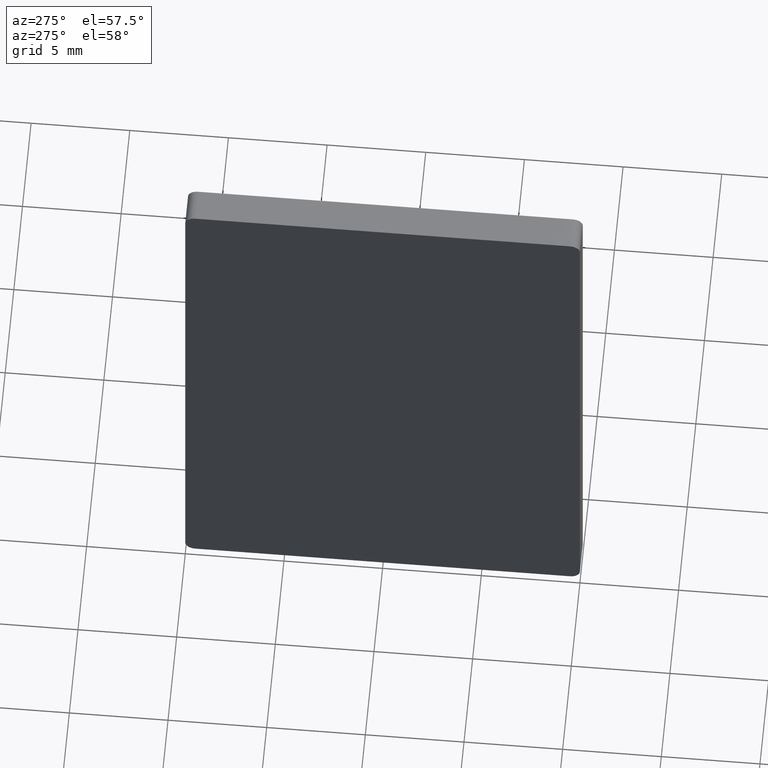
[diagram: clean part render]
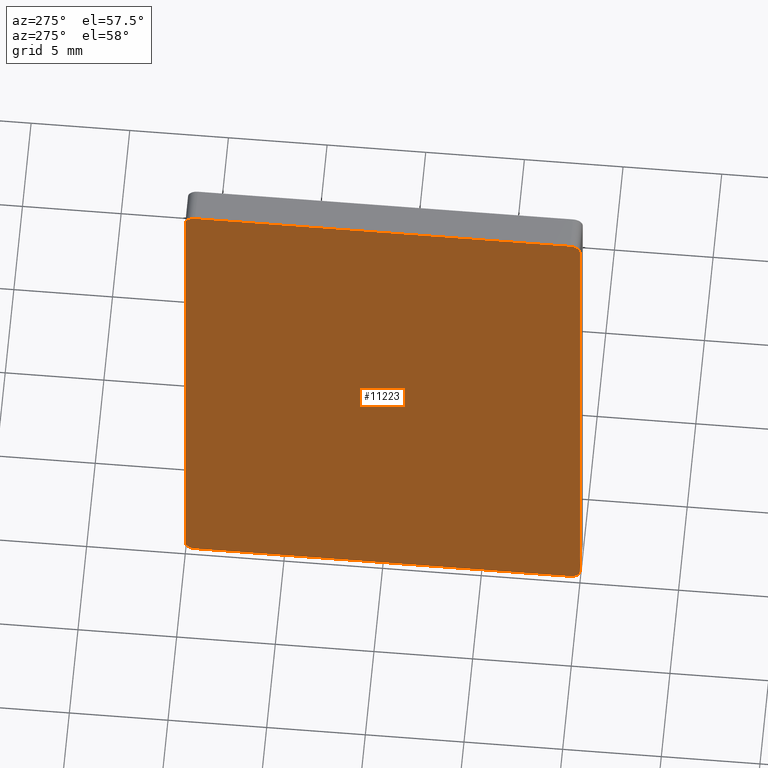
[diagram: same view with one face highlighted and labeled with its STEP entity id]
A machine part, auxiliary view. The second image highlights one B-rep face of the part: STEP entity #11223.
In plain terms, the highlighted planar face has unit normal (-1, -0, 0).
Its self-contained STEP definition (entity closure, byte-faithful):
#891 = PLANE ( 'NONE',  #8982 ) ;
#1602 = VERTEX_POINT ( 'NONE', #5547 ) ;
#1721 = EDGE_CURVE ( 'NONE', #11496, #2223, #14246, .T. ) ;
#1748 = VECTOR ( 'NONE', #4667, 1000.000000000000000 ) ;
#1776 = AXIS2_PLACEMENT_3D ( 'NONE', #14523, #7349, #8398 ) ;
#1781 = DIRECTION ( 'NONE',  ( 0.000000000000000000, 0.000000000000000000, -1.000000000000000000 ) ) ;
#2223 = VERTEX_POINT ( 'NONE', #5554 ) ;
#2411 = DIRECTION ( 'NONE',  ( 0.000000000000000000, 0.000000000000000000, -1.000000000000000000 ) ) ;
#2457 = CARTESIAN_POINT ( 'NONE',  ( 0.000000000000000000, 19.49999999999999645, -31.00000000000000000 ) ) ;
#2495 = AXIS2_PLACEMENT_3D ( 'NONE', #3610, #11738, #2411 ) ;
#2618 = CIRCLE ( 'NONE', #7573, 0.5000000000000000000 ) ;
#2733 = EDGE_LOOP ( 'NONE', ( #11856, #13010, #3231, #10887, #12957, #6632, #7552, #6910 ) ) ;
#3108 = CARTESIAN_POINT ( 'NONE',  ( 0.000000000000000000, 0.5000000000000035527, -31.00000000000000000 ) ) ;
#3231 = ORIENTED_EDGE ( 'NONE', *, *, #14732, .F. ) ;
#3326 = CIRCLE ( 'NONE', #6371, 0.5000000000000004441 ) ;
#3336 = DIRECTION ( 'NONE',  ( -1.000000000000000000, -0.000000000000000000, 0.000000000000000000 ) ) ;
#3489 = CARTESIAN_POINT ( 'NONE',  ( 0.000000000000000000, 19.49999999999999645, 2.168404344971008868E-16 ) ) ;
#3610 = CARTESIAN_POINT ( 'NONE',  ( 0.000000000000000000, 19.50000000000000000, -0.5000000000000000000 ) ) ;
#3624 = CARTESIAN_POINT ( 'NONE',  ( 0.000000000000000000, 0.000000000000000000, -0.5000000000000035527 ) ) ;
#3924 = VERTEX_POINT ( 'NONE', #4360 ) ;
#4258 = VECTOR ( 'NONE', #9627, 1000.000000000000000 ) ;
#4297 = DIRECTION ( 'NONE',  ( 0.000000000000000000, 0.000000000000000000, 1.000000000000000000 ) ) ;
#4360 = CARTESIAN_POINT ( 'NONE',  ( 0.000000000000000000, 0.000000000000000000, -0.5000000000000035527 ) ) ;
#4369 = VERTEX_POINT ( 'NONE', #3489 ) ;
#4667 = DIRECTION ( 'NONE',  ( -0.000000000000000000, -0.000000000000000000, 1.000000000000000000 ) ) ;
#4731 = DIRECTION ( 'NONE',  ( -0.000000000000000000, -1.000000000000000000, -0.000000000000000000 ) ) ;
#5533 = VECTOR ( 'NONE', #4731, 1000.000000000000000 ) ;
#5547 = CARTESIAN_POINT ( 'NONE',  ( 0.000000000000000000, 0.5000000000000035527, 0.000000000000000000 ) ) ;
#5554 = CARTESIAN_POINT ( 'NONE',  ( 0.000000000000000000, 20.00000000000000000, -0.5000000000000035527 ) ) ;
#5557 = VERTEX_POINT ( 'NONE', #2457 ) ;
#6286 = EDGE_CURVE ( 'NONE', #1602, #3924, #2618, .T. ) ;
#6371 = AXIS2_PLACEMENT_3D ( 'NONE', #7751, #7798, #1781 ) ;
#6501 = LINE ( 'NONE', #3624, #4258 ) ;
#6561 = CARTESIAN_POINT ( 'NONE',  ( 0.000000000000000000, 0.5000000000000035527, -31.00000000000000000 ) ) ;
#6632 = ORIENTED_EDGE ( 'NONE', *, *, #10588, .F. ) ;
#6647 = DIRECTION ( 'NONE',  ( 0.000000000000000000, 1.000000000000000000, 0.000000000000000000 ) ) ;
#6910 = ORIENTED_EDGE ( 'NONE', *, *, #10891, .F. ) ;
#7073 = VECTOR ( 'NONE', #6647, 1000.000000000000000 ) ;
#7349 = DIRECTION ( 'NONE',  ( 1.000000000000000000, 0.000000000000000000, -0.000000000000000000 ) ) ;
#7552 = ORIENTED_EDGE ( 'NONE', *, *, #11598, .F. ) ;
#7573 = AXIS2_PLACEMENT_3D ( 'NONE', #9153, #9101, #4297 ) ;
#7751 = CARTESIAN_POINT ( 'NONE',  ( 0.000000000000000000, 19.50000000000000000, -30.50000000000000000 ) ) ;
#7798 = DIRECTION ( 'NONE',  ( 1.000000000000000000, 0.000000000000000000, 0.000000000000000000 ) ) ;
#8155 = DIRECTION ( 'NONE',  ( 0.000000000000000000, 0.000000000000000000, 1.000000000000000000 ) ) ;
#8398 = DIRECTION ( 'NONE',  ( 0.000000000000000000, 0.000000000000000000, 1.000000000000000000 ) ) ;
#8937 = FACE_OUTER_BOUND ( 'NONE', #2733, .T. ) ;
#8982 = AXIS2_PLACEMENT_3D ( 'NONE', #14024, #3336, #8155 ) ;
#9101 = DIRECTION ( 'NONE',  ( 1.000000000000000000, 0.000000000000000000, -0.000000000000000000 ) ) ;
#9153 = CARTESIAN_POINT ( 'NONE',  ( 0.000000000000000000, 0.5000000000000000000, -0.5000000000000000000 ) ) ;
#9627 = DIRECTION ( 'NONE',  ( 0.000000000000000000, 0.000000000000000000, -1.000000000000000000 ) ) ;
#10588 = EDGE_CURVE ( 'NONE', #11401, #5557, #12643, .T. ) ;
#10683 = CARTESIAN_POINT ( 'NONE',  ( 0.000000000000000000, 20.00000000000000000, -0.5000000000000035527 ) ) ;
#10773 = CIRCLE ( 'NONE', #2495, 0.5000000000000002220 ) ;
#10887 = ORIENTED_EDGE ( 'NONE', *, *, #1721, .F. ) ;
#10891 = EDGE_CURVE ( 'NONE', #3924, #12168, #6501, .T. ) ;
#10903 = CARTESIAN_POINT ( 'NONE',  ( 0.000000000000000000, 0.5000000000000035527, 0.000000000000000000 ) ) ;
#11000 = EDGE_CURVE ( 'NONE', #5557, #11496, #3326, .T. ) ;
#11223 = ADVANCED_FACE ( 'NONE', ( #8937 ), #891, .T. ) ;
#11401 = VERTEX_POINT ( 'NONE', #6561 ) ;
#11496 = VERTEX_POINT ( 'NONE', #15198 ) ;
#11598 = EDGE_CURVE ( 'NONE', #12168, #11401, #12819, .T. ) ;
#11738 = DIRECTION ( 'NONE',  ( 1.000000000000000000, 0.000000000000000000, 0.000000000000000000 ) ) ;
#11856 = ORIENTED_EDGE ( 'NONE', *, *, #6286, .F. ) ;
#12168 = VERTEX_POINT ( 'NONE', #14505 ) ;
#12643 = LINE ( 'NONE', #3108, #7073 ) ;
#12819 = CIRCLE ( 'NONE', #1776, 0.5000000000000004441 ) ;
#12957 = ORIENTED_EDGE ( 'NONE', *, *, #11000, .F. ) ;
#13010 = ORIENTED_EDGE ( 'NONE', *, *, #13802, .F. ) ;
#13802 = EDGE_CURVE ( 'NONE', #4369, #1602, #14118, .T. ) ;
#14024 = CARTESIAN_POINT ( 'NONE',  ( 0.000000000000000000, 0.5000000000000000000, -0.5000000000000000000 ) ) ;
#14118 = LINE ( 'NONE', #10903, #5533 ) ;
#14246 = LINE ( 'NONE', #10683, #1748 ) ;
#14505 = CARTESIAN_POINT ( 'NONE',  ( 0.000000000000000000, 0.000000000000000000, -30.49999999999999645 ) ) ;
#14523 = CARTESIAN_POINT ( 'NONE',  ( 0.000000000000000000, 0.5000000000000000000, -30.50000000000000000 ) ) ;
#14732 = EDGE_CURVE ( 'NONE', #2223, #4369, #10773, .T. ) ;
#15198 = CARTESIAN_POINT ( 'NONE',  ( 0.000000000000000000, 20.00000000000000000, -30.49999999999999645 ) ) ;